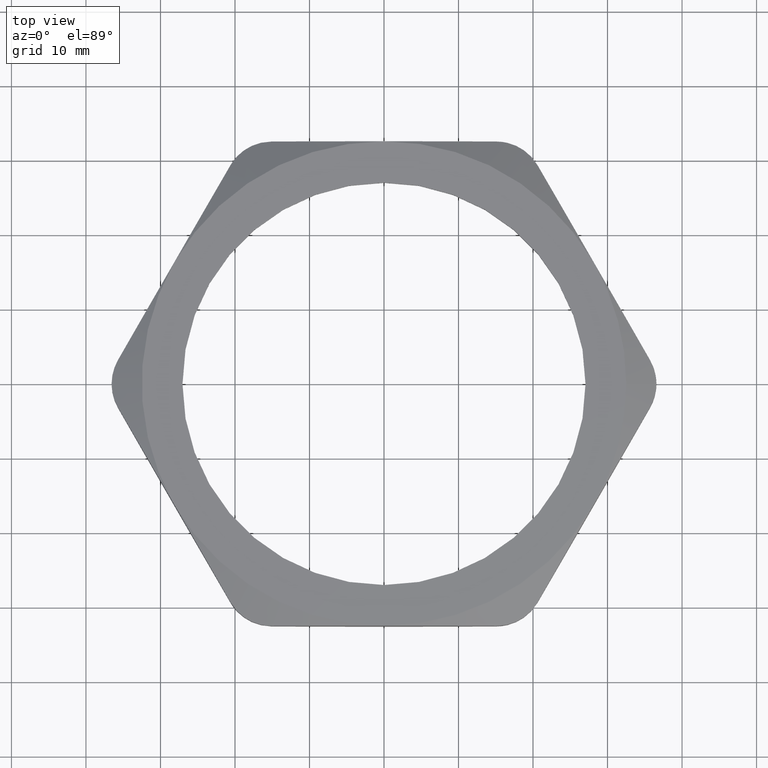
[diagram: clean part render]
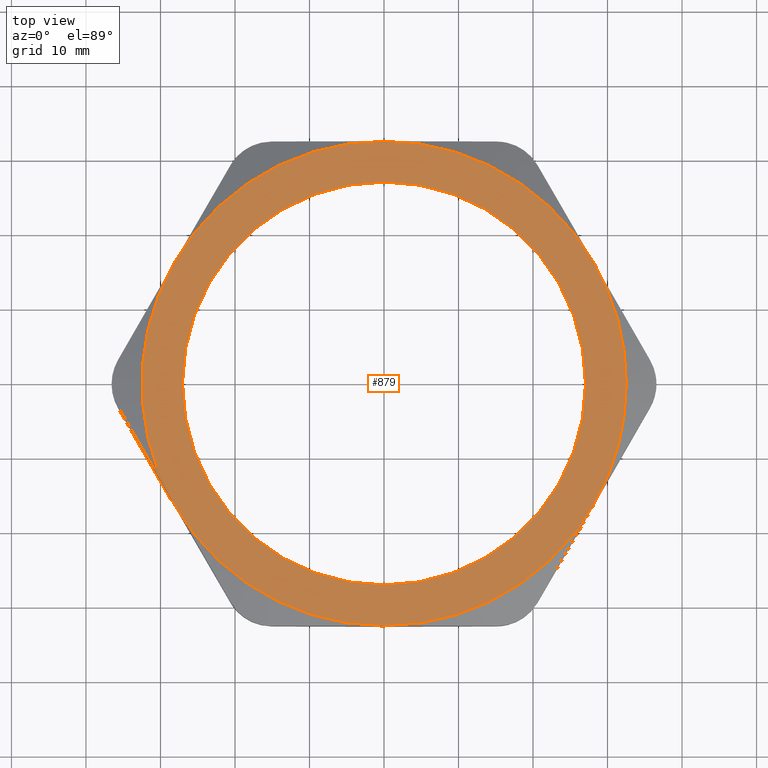
[diagram: same view with one face highlighted and labeled with its STEP entity id]
A machine part, top view. The second image highlights one B-rep face of the part: STEP entity #879.
In plain terms, the highlighted planar face has unit normal (0, 0, -1).
Its self-contained STEP definition (entity closure, byte-faithful):
#4 = EDGE_CURVE ( 'NONE', #7, #8, #964, .T. ) ;
#7 = VERTEX_POINT ( 'NONE', #1013 ) ;
#8 = VERTEX_POINT ( 'NONE', #1012 ) ;
#19 = EDGE_CURVE ( 'NONE', #20, #21, #994, .T. ) ;
#20 = VERTEX_POINT ( 'NONE', #989 ) ;
#21 = VERTEX_POINT ( 'NONE', #988 ) ;
#811 = VERTEX_POINT ( 'NONE', #2500 ) ;
#829 = VERTEX_POINT ( 'NONE', #2556 ) ;
#843 = VERTEX_POINT ( 'NONE', #2578 ) ;
#850 = VERTEX_POINT ( 'NONE', #2571 ) ;
#879 = ADVANCED_FACE ( 'NONE', ( #2634, #2681 ), #2680, .F. ) ;
#880 = EDGE_LOOP ( 'NONE', ( #881, #882 ) ) ;
#881 = ORIENTED_EDGE ( 'NONE', *, *, #19, .F. ) ;
#882 = ORIENTED_EDGE ( 'NONE', *, *, #883, .F. ) ;
#883 = EDGE_CURVE ( 'NONE', #21, #20, #2675, .T. ) ;
#884 = EDGE_LOOP ( 'NONE', ( #885, #887, #900, #902, #904, #915, #916 ) ) ;
#885 = ORIENTED_EDGE ( 'NONE', *, *, #886, .T. ) ;
#886 = EDGE_CURVE ( 'NONE', #929, #829, #2670, .T. ) ;
#887 = ORIENTED_EDGE ( 'NONE', *, *, #888, .T. ) ;
#888 = EDGE_CURVE ( 'NONE', #829, #811, #2665, .T. ) ;
#900 = ORIENTED_EDGE ( 'NONE', *, *, #901, .T. ) ;
#901 = EDGE_CURVE ( 'NONE', #811, #843, #2706, .T. ) ;
#902 = ORIENTED_EDGE ( 'NONE', *, *, #903, .T. ) ;
#903 = EDGE_CURVE ( 'NONE', #843, #850, #2701, .T. ) ;
#904 = ORIENTED_EDGE ( 'NONE', *, *, #905, .T. ) ;
#905 = EDGE_CURVE ( 'NONE', #850, #7, #2757, .T. ) ;
#915 = ORIENTED_EDGE ( 'NONE', *, *, #4, .T. ) ;
#916 = ORIENTED_EDGE ( 'NONE', *, *, #917, .T. ) ;
#917 = EDGE_CURVE ( 'NONE', #8, #929, #2784, .T. ) ;
#929 = VERTEX_POINT ( 'NONE', #2808 ) ;
#953 = DIRECTION ( 'NONE',  ( 1.000000000000000000, 0.0000000000000000000, 0.0000000000000000000 ) ) ;
#954 = DIRECTION ( 'NONE',  ( 0.0000000000000000000, 0.0000000000000000000, 1.000000000000000000 ) ) ;
#955 = AXIS2_PLACEMENT_3D ( 'NONE', #966, #954, #953 ) ;
#964 = CIRCLE ( 'NONE', #955, 1.280000000000000000 ) ;
#966 = CARTESIAN_POINT ( 'NONE',  ( 0.0000000000000000000, 0.0000000000000000000, 0.3100000000000000000 ) ) ;
#988 = CARTESIAN_POINT ( 'NONE',  ( 1.064999999999999900, 1.316495309083404900E-016, 0.3100000000000000000 ) ) ;
#989 = CARTESIAN_POINT ( 'NONE',  ( -1.064999999999999900, 0.0000000000000000000, 0.3100000000000000000 ) ) ;
#990 = DIRECTION ( 'NONE',  ( 1.000000000000000000, 0.0000000000000000000, 0.0000000000000000000 ) ) ;
#991 = DIRECTION ( 'NONE',  ( 0.0000000000000000000, 0.0000000000000000000, 1.000000000000000000 ) ) ;
#992 = CARTESIAN_POINT ( 'NONE',  ( 0.0000000000000000000, 0.0000000000000000000, 0.3100000000000000000 ) ) ;
#993 = AXIS2_PLACEMENT_3D ( 'NONE', #992, #991, #990 ) ;
#994 = CIRCLE ( 'NONE', #993, 1.064999999999999900 ) ;
#1012 = CARTESIAN_POINT ( 'NONE',  ( 1.108512516844081900, 0.6400000000000000100, 0.3100000000000000000 ) ) ;
#1013 = CARTESIAN_POINT ( 'NONE',  ( 1.280000000000000000, 0.0000000000000000000, 0.3100000000000000000 ) ) ;
#2218 = DIRECTION ( 'NONE',  ( 1.000000000000000000, 0.0000000000000000000, 0.0000000000000000000 ) ) ;
#2500 = CARTESIAN_POINT ( 'NONE',  ( -1.108512516844081900, -0.6399999999999992400, 0.3100000000000000000 ) ) ;
#2556 = CARTESIAN_POINT ( 'NONE',  ( -1.108512516844081300, 0.6399999999999999000, 0.3100000000000000000 ) ) ;
#2571 = CARTESIAN_POINT ( 'NONE',  ( 1.108512516844081300, -0.6399999999999996800, 0.3100000000000000000 ) ) ;
#2578 = CARTESIAN_POINT ( 'NONE',  ( 2.365849761790801000E-016, -1.279999999999999800, 0.3100000000000000000 ) ) ;
#2634 = FACE_BOUND ( 'NONE', #880, .T. ) ;
#2661 = DIRECTION ( 'NONE',  ( 1.000000000000000000, 0.0000000000000000000, 0.0000000000000000000 ) ) ;
#2662 = DIRECTION ( 'NONE',  ( 0.0000000000000000000, 0.0000000000000000000, 1.000000000000000000 ) ) ;
#2663 = CARTESIAN_POINT ( 'NONE',  ( 0.0000000000000000000, 0.0000000000000000000, 0.3100000000000000000 ) ) ;
#2664 = AXIS2_PLACEMENT_3D ( 'NONE', #2663, #2662, #2661 ) ;
#2665 = CIRCLE ( 'NONE', #2664, 1.280000000000000000 ) ;
#2666 = DIRECTION ( 'NONE',  ( 1.000000000000000000, 0.0000000000000000000, 0.0000000000000000000 ) ) ;
#2667 = DIRECTION ( 'NONE',  ( 0.0000000000000000000, 0.0000000000000000000, 1.000000000000000000 ) ) ;
#2668 = CARTESIAN_POINT ( 'NONE',  ( 0.0000000000000000000, 0.0000000000000000000, 0.3100000000000000000 ) ) ;
#2669 = AXIS2_PLACEMENT_3D ( 'NONE', #2668, #2667, #2666 ) ;
#2670 = CIRCLE ( 'NONE', #2669, 1.280000000000000000 ) ;
#2671 = DIRECTION ( 'NONE',  ( 1.000000000000000000, 0.0000000000000000000, 0.0000000000000000000 ) ) ;
#2672 = DIRECTION ( 'NONE',  ( 0.0000000000000000000, 0.0000000000000000000, 1.000000000000000000 ) ) ;
#2673 = CARTESIAN_POINT ( 'NONE',  ( 0.0000000000000000000, 0.0000000000000000000, 0.3100000000000000000 ) ) ;
#2674 = AXIS2_PLACEMENT_3D ( 'NONE', #2673, #2672, #2671 ) ;
#2675 = CIRCLE ( 'NONE', #2674, 1.064999999999999900 ) ;
#2676 = DIRECTION ( 'NONE',  ( -1.000000000000000000, 0.0000000000000000000, 0.0000000000000000000 ) ) ;
#2677 = DIRECTION ( 'NONE',  ( 0.0000000000000000000, 0.0000000000000000000, -1.000000000000000000 ) ) ;
#2678 = CARTESIAN_POINT ( 'NONE',  ( 2.731847993664263200E-016, 2.560000000000000100, 0.3100000000000000000 ) ) ;
#2679 = AXIS2_PLACEMENT_3D ( 'NONE', #2678, #2677, #2676 ) ;
#2680 = PLANE ( 'NONE',  #2679 ) ;
#2681 = FACE_OUTER_BOUND ( 'NONE', #884, .T. ) ;
#2698 = DIRECTION ( 'NONE',  ( 0.0000000000000000000, 0.0000000000000000000, 1.000000000000000000 ) ) ;
#2699 = CARTESIAN_POINT ( 'NONE',  ( 0.0000000000000000000, 0.0000000000000000000, 0.3100000000000000000 ) ) ;
#2700 = AXIS2_PLACEMENT_3D ( 'NONE', #2699, #2698, #2218 ) ;
#2701 = CIRCLE ( 'NONE', #2700, 1.280000000000000000 ) ;
#2702 = DIRECTION ( 'NONE',  ( 1.000000000000000000, 0.0000000000000000000, 0.0000000000000000000 ) ) ;
#2703 = DIRECTION ( 'NONE',  ( 0.0000000000000000000, 0.0000000000000000000, 1.000000000000000000 ) ) ;
#2704 = CARTESIAN_POINT ( 'NONE',  ( 0.0000000000000000000, 0.0000000000000000000, 0.3100000000000000000 ) ) ;
#2705 = AXIS2_PLACEMENT_3D ( 'NONE', #2704, #2703, #2702 ) ;
#2706 = CIRCLE ( 'NONE', #2705, 1.280000000000000000 ) ;
#2753 = DIRECTION ( 'NONE',  ( 1.000000000000000000, 0.0000000000000000000, 0.0000000000000000000 ) ) ;
#2754 = DIRECTION ( 'NONE',  ( 0.0000000000000000000, 0.0000000000000000000, 1.000000000000000000 ) ) ;
#2755 = CARTESIAN_POINT ( 'NONE',  ( 0.0000000000000000000, 0.0000000000000000000, 0.3100000000000000000 ) ) ;
#2756 = AXIS2_PLACEMENT_3D ( 'NONE', #2755, #2754, #2753 ) ;
#2757 = CIRCLE ( 'NONE', #2756, 1.280000000000000000 ) ;
#2780 = DIRECTION ( 'NONE',  ( 1.000000000000000000, 0.0000000000000000000, 0.0000000000000000000 ) ) ;
#2781 = DIRECTION ( 'NONE',  ( 0.0000000000000000000, 0.0000000000000000000, 1.000000000000000000 ) ) ;
#2782 = CARTESIAN_POINT ( 'NONE',  ( 0.0000000000000000000, 0.0000000000000000000, 0.3100000000000000000 ) ) ;
#2783 = AXIS2_PLACEMENT_3D ( 'NONE', #2782, #2781, #2780 ) ;
#2784 = CIRCLE ( 'NONE', #2783, 1.280000000000000000 ) ;
#2808 = CARTESIAN_POINT ( 'NONE',  ( 0.0000000000000000000, 1.280000000000000000, 0.3100000000000000000 ) ) ;